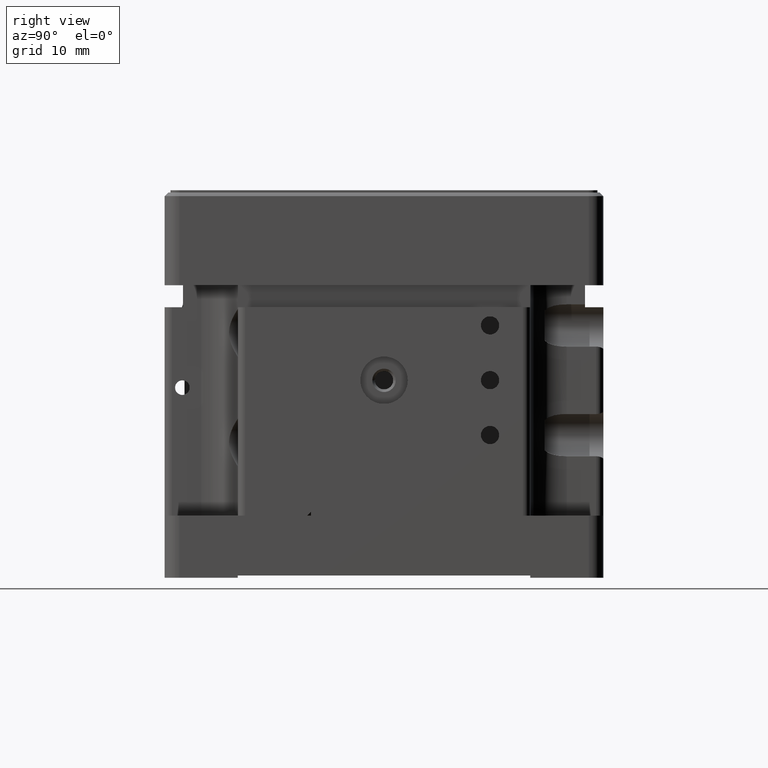
[diagram: clean part render]
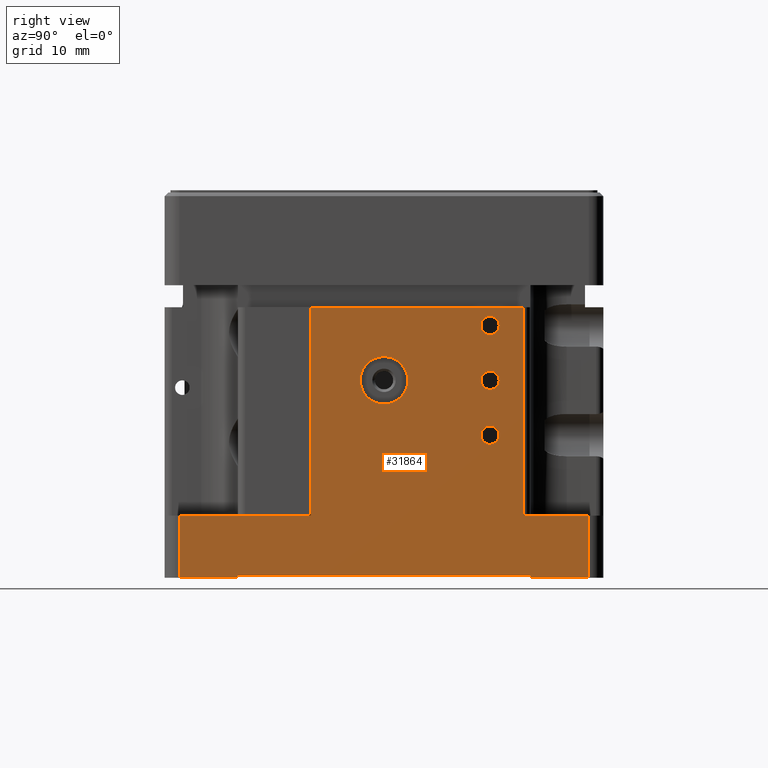
[diagram: same view with one face highlighted and labeled with its STEP entity id]
A machine part, right view. The second image highlights one B-rep face of the part: STEP entity #31864.
In plain terms, the highlighted planar face has unit normal (1, 0, 0).
Its self-contained STEP definition (entity closure, byte-faithful):
#19 = ORIENTED_EDGE ( 'NONE', *, *, #12343, .F. ) ;
#196 = FACE_BOUND ( 'NONE', #23311, .T. ) ;
#382 = DIRECTION ( 'NONE',  ( 0.000000000000000000, 1.000000000000000000, 0.000000000000000000 ) ) ;
#1171 = CARTESIAN_POINT ( 'NONE',  ( 30.00000000000000000, 13.25000000000000000, 26.00000000000000000 ) ) ;
#1453 = VERTEX_POINT ( 'NONE', #10500 ) ;
#1539 = DIRECTION ( 'NONE',  ( 0.000000000000000000, 0.000000000000000000, 1.000000000000000000 ) ) ;
#2088 = DIRECTION ( 'NONE',  ( 0.000000000000000000, 0.000000000000000000, 1.000000000000000000 ) ) ;
#2244 = DIRECTION ( 'NONE',  ( 0.000000000000000000, 1.000000000000000000, 0.000000000000000000 ) ) ;
#2496 = CARTESIAN_POINT ( 'NONE',  ( 30.00000000000000000, 3.250000000000000000, 18.50000000000000000 ) ) ;
#2502 = CARTESIAN_POINT ( 'NONE',  ( 30.00000000000000000, 13.25000000000000000, 18.50000000000000000 ) ) ;
#2933 = CARTESIAN_POINT ( 'NONE',  ( 30.00000000000000000, -20.00000000000000000, -8.200000000000001066 ) ) ;
#3185 = VECTOR ( 'NONE', #33262, 1000.000000000000000 ) ;
#3278 = EDGE_CURVE ( 'NONE', #31122, #7714, #16476, .T. ) ;
#3450 = LINE ( 'NONE', #16504, #17780 ) ;
#3701 = DIRECTION ( 'NONE',  ( 1.000000000000000000, 0.000000000000000000, 0.000000000000000000 ) ) ;
#3702 = VERTEX_POINT ( 'NONE', #8988 ) ;
#4165 = CARTESIAN_POINT ( 'NONE',  ( 30.00000000000000000, 20.00000000000000000, -8.500000000000000000 ) ) ;
#4915 = VERTEX_POINT ( 'NONE', #14478 ) ;
#5114 = ORIENTED_EDGE ( 'NONE', *, *, #11395, .F. ) ;
#5138 = EDGE_CURVE ( 'NONE', #31122, #7283, #31779, .T. ) ;
#5150 = VERTEX_POINT ( 'NONE', #2502 ) ;
#5182 = EDGE_CURVE ( 'NONE', #1453, #13533, #24009, .T. ) ;
#5289 = EDGE_LOOP ( 'NONE', ( #28198, #19925 ) ) ;
#5333 = CARTESIAN_POINT ( 'NONE',  ( 30.00000000000000000, -20.00000000000000000, -8.200000000000001066 ) ) ;
#5681 = CIRCLE ( 'NONE', #10178, 1.249999999999999334 ) ;
#5740 = VERTEX_POINT ( 'NONE', #1171 ) ;
#6149 = CARTESIAN_POINT ( 'NONE',  ( 30.00000000000000000, 28.00000000000000000, 0.000000000000000000 ) ) ;
#6386 = DIRECTION ( 'NONE',  ( 0.000000000000000000, 1.000000000000000000, 0.000000000000000000 ) ) ;
#6529 = DIRECTION ( 'NONE',  ( 1.000000000000000000, 0.000000000000000000, 0.000000000000000000 ) ) ;
#6609 = VECTOR ( 'NONE', #29565, 1000.000000000000000 ) ;
#6643 = CARTESIAN_POINT ( 'NONE',  ( 30.00000000000000000, 19.00000000000000000, 0.000000000000000000 ) ) ;
#6654 = DIRECTION ( 'NONE',  ( 1.000000000000000000, 0.000000000000000000, 0.000000000000000000 ) ) ;
#6694 = DIRECTION ( 'NONE',  ( 0.000000000000000000, -1.000000000000000000, 0.000000000000000000 ) ) ;
#6974 = ORIENTED_EDGE ( 'NONE', *, *, #20672, .T. ) ;
#7026 = EDGE_CURVE ( 'NONE', #24169, #5740, #32182, .T. ) ;
#7042 = EDGE_CURVE ( 'NONE', #4915, #5150, #5681, .T. ) ;
#7187 = ORIENTED_EDGE ( 'NONE', *, *, #18861, .F. ) ;
#7283 = VERTEX_POINT ( 'NONE', #9562 ) ;
#7402 = CARTESIAN_POINT ( 'NONE',  ( 30.00000000000000000, 15.75000000000000000, 11.00000000000000000 ) ) ;
#7500 = CARTESIAN_POINT ( 'NONE',  ( 30.00000000000000000, 28.00000000000000000, 0.000000000000000000 ) ) ;
#7507 = EDGE_CURVE ( 'NONE', #11823, #20829, #10612, .T. ) ;
#7585 = CARTESIAN_POINT ( 'NONE',  ( 30.00000000000000000, 0.000000000000000000, 0.000000000000000000 ) ) ;
#7692 = CARTESIAN_POINT ( 'NONE',  ( 30.00000000000000000, -10.00000000000000000, 0.000000000000000000 ) ) ;
#7714 = VERTEX_POINT ( 'NONE', #25410 ) ;
#8072 = ORIENTED_EDGE ( 'NONE', *, *, #5138, .T. ) ;
#8479 = ORIENTED_EDGE ( 'NONE', *, *, #7507, .T. ) ;
#8550 = DIRECTION ( 'NONE',  ( 0.000000000000000000, 1.000000000000000000, 0.000000000000000000 ) ) ;
#8644 = CARTESIAN_POINT ( 'NONE',  ( 30.00000000000000000, -28.00000000000000000, -8.500000000000000000 ) ) ;
#8988 = CARTESIAN_POINT ( 'NONE',  ( 30.00000000000000000, -20.00000000000000000, -8.500000000000000000 ) ) ;
#9118 = VECTOR ( 'NONE', #32312, 1000.000000000000000 ) ;
#9294 = DIRECTION ( 'NONE',  ( 0.000000000000000000, 1.000000000000000000, 0.000000000000000000 ) ) ;
#9554 = AXIS2_PLACEMENT_3D ( 'NONE', #14475, #20290, #6694 ) ;
#9562 = CARTESIAN_POINT ( 'NONE',  ( 30.00000000000000000, -10.00000000000000000, 0.000000000000000000 ) ) ;
#9985 = EDGE_CURVE ( 'NONE', #3702, #27763, #25707, .T. ) ;
#10178 = AXIS2_PLACEMENT_3D ( 'NONE', #11950, #22707, #9294 ) ;
#10406 = PLANE ( 'NONE',  #15788 ) ;
#10500 = CARTESIAN_POINT ( 'NONE',  ( 30.00000000000000000, -28.00000000000000000, 0.000000000000000000 ) ) ;
#10612 = LINE ( 'NONE', #21370, #12477 ) ;
#10682 = CARTESIAN_POINT ( 'NONE',  ( 30.00000000000000000, 14.50000000000000000, 11.00000000000000000 ) ) ;
#10879 = DIRECTION ( 'NONE',  ( 1.000000000000000000, 0.000000000000000000, 0.000000000000000000 ) ) ;
#10913 = ORIENTED_EDGE ( 'NONE', *, *, #31971, .F. ) ;
#11062 = ORIENTED_EDGE ( 'NONE', *, *, #27206, .F. ) ;
#11262 = ORIENTED_EDGE ( 'NONE', *, *, #3278, .F. ) ;
#11303 = VECTOR ( 'NONE', #21920, 1000.000000000000000 ) ;
#11329 = CIRCLE ( 'NONE', #9554, 1.249999999999999334 ) ;
#11395 = EDGE_CURVE ( 'NONE', #5740, #24169, #22153, .T. ) ;
#11467 = CARTESIAN_POINT ( 'NONE',  ( 30.00000000000000000, 0.000000000000000000, 18.50000000000000000 ) ) ;
#11823 = VERTEX_POINT ( 'NONE', #7500 ) ;
#11950 = CARTESIAN_POINT ( 'NONE',  ( 30.00000000000000000, 14.50000000000000000, 18.50000000000000000 ) ) ;
#11993 = AXIS2_PLACEMENT_3D ( 'NONE', #19173, #10879, #26934 ) ;
#12170 = EDGE_LOOP ( 'NONE', ( #33125, #19 ) ) ;
#12343 = EDGE_CURVE ( 'NONE', #27368, #19048, #27844, .T. ) ;
#12477 = VECTOR ( 'NONE', #32148, 1000.000000000000000 ) ;
#12600 = VECTOR ( 'NONE', #33131, 1000.000000000000000 ) ;
#12803 = VERTEX_POINT ( 'NONE', #17237 ) ;
#13139 = CARTESIAN_POINT ( 'NONE',  ( 30.00000000000000000, 13.25000000000000000, 11.00000000000000000 ) ) ;
#13224 = DIRECTION ( 'NONE',  ( 1.000000000000000000, 0.000000000000000000, 0.000000000000000000 ) ) ;
#13533 = VERTEX_POINT ( 'NONE', #21271 ) ;
#14069 = EDGE_CURVE ( 'NONE', #5150, #4915, #11329, .T. ) ;
#14449 = ORIENTED_EDGE ( 'NONE', *, *, #9985, .T. ) ;
#14475 = CARTESIAN_POINT ( 'NONE',  ( 30.00000000000000000, 14.50000000000000000, 18.50000000000000000 ) ) ;
#14478 = CARTESIAN_POINT ( 'NONE',  ( 30.00000000000000000, 15.75000000000000000, 18.50000000000000000 ) ) ;
#15326 = ORIENTED_EDGE ( 'NONE', *, *, #7026, .F. ) ;
#15372 = EDGE_LOOP ( 'NONE', ( #23826, #7187 ) ) ;
#15405 = CARTESIAN_POINT ( 'NONE',  ( 30.00000000000000000, 28.00000000000000000, -8.500000000000000000 ) ) ;
#15643 = DIRECTION ( 'NONE',  ( 1.000000000000000000, 0.000000000000000000, 0.000000000000000000 ) ) ;
#15788 = AXIS2_PLACEMENT_3D ( 'NONE', #7585, #13224, #16407 ) ;
#16047 = FACE_BOUND ( 'NONE', #15372, .T. ) ;
#16407 = DIRECTION ( 'NONE',  ( 0.000000000000000000, 1.000000000000000000, 0.000000000000000000 ) ) ;
#16463 = EDGE_CURVE ( 'NONE', #13533, #3702, #24181, .T. ) ;
#16476 = LINE ( 'NONE', #21749, #11303 ) ;
#16504 = CARTESIAN_POINT ( 'NONE',  ( 30.00000000000000000, 20.00000000000000000, -8.500000000000000000 ) ) ;
#16562 = CARTESIAN_POINT ( 'NONE',  ( 30.00000000000000000, 15.75000000000000000, 26.00000000000000000 ) ) ;
#16809 = ORIENTED_EDGE ( 'NONE', *, *, #5182, .T. ) ;
#16900 = CARTESIAN_POINT ( 'NONE',  ( 30.00000000000000000, 19.00000000000000000, 0.000000000000000000 ) ) ;
#17237 = CARTESIAN_POINT ( 'NONE',  ( 30.00000000000000000, 20.00000000000000000, -8.200000000000001066 ) ) ;
#17395 = LINE ( 'NONE', #4165, #24518 ) ;
#17780 = VECTOR ( 'NONE', #8550, 1000.000000000000000 ) ;
#18063 = VECTOR ( 'NONE', #30152, 1000.000000000000000 ) ;
#18292 = EDGE_CURVE ( 'NONE', #19048, #27368, #24837, .T. ) ;
#18511 = AXIS2_PLACEMENT_3D ( 'NONE', #30215, #33396, #6386 ) ;
#18522 = VERTEX_POINT ( 'NONE', #26139 ) ;
#18695 = CARTESIAN_POINT ( 'NONE',  ( 30.00000000000000000, -3.250000000000000000, 18.50000000000000000 ) ) ;
#18861 = EDGE_CURVE ( 'NONE', #28383, #33983, #32208, .T. ) ;
#18892 = CARTESIAN_POINT ( 'NONE',  ( 30.00000000000000000, -28.00000000000000000, 0.000000000000000000 ) ) ;
#19048 = VERTEX_POINT ( 'NONE', #7402 ) ;
#19173 = CARTESIAN_POINT ( 'NONE',  ( 30.00000000000000000, 14.50000000000000000, 26.00000000000000000 ) ) ;
#19368 = LINE ( 'NONE', #16900, #12600 ) ;
#19380 = AXIS2_PLACEMENT_3D ( 'NONE', #25371, #3701, #25206 ) ;
#19426 = VECTOR ( 'NONE', #2088, 1000.000000000000000 ) ;
#19925 = ORIENTED_EDGE ( 'NONE', *, *, #14069, .F. ) ;
#20068 = LINE ( 'NONE', #7692, #6609 ) ;
#20290 = DIRECTION ( 'NONE',  ( 1.000000000000000000, 0.000000000000000000, 0.000000000000000000 ) ) ;
#20672 = EDGE_CURVE ( 'NONE', #20829, #7714, #19368, .T. ) ;
#20829 = VERTEX_POINT ( 'NONE', #6643 ) ;
#20956 = CARTESIAN_POINT ( 'NONE',  ( 30.00000000000000000, -20.00000000000000000, -8.500000000000000000 ) ) ;
#21071 = EDGE_CURVE ( 'NONE', #27763, #12803, #27086, .T. ) ;
#21271 = CARTESIAN_POINT ( 'NONE',  ( 30.00000000000000000, -28.00000000000000000, -8.500000000000000000 ) ) ;
#21370 = CARTESIAN_POINT ( 'NONE',  ( 30.00000000000000000, 28.00000000000000000, 0.000000000000000000 ) ) ;
#21494 = AXIS2_PLACEMENT_3D ( 'NONE', #11467, #6529, #28061 ) ;
#21749 = CARTESIAN_POINT ( 'NONE',  ( 30.00000000000000000, -10.00000000000000000, 28.50000000000000000 ) ) ;
#21875 = ORIENTED_EDGE ( 'NONE', *, *, #16463, .T. ) ;
#21920 = DIRECTION ( 'NONE',  ( 0.000000000000000000, 1.000000000000000000, 0.000000000000000000 ) ) ;
#22003 = EDGE_CURVE ( 'NONE', #7283, #1453, #20068, .T. ) ;
#22153 = CIRCLE ( 'NONE', #11993, 1.249999999999999334 ) ;
#22707 = DIRECTION ( 'NONE',  ( 1.000000000000000000, 0.000000000000000000, 0.000000000000000000 ) ) ;
#23311 = EDGE_LOOP ( 'NONE', ( #15326, #5114 ) ) ;
#23638 = FACE_BOUND ( 'NONE', #12170, .T. ) ;
#23826 = ORIENTED_EDGE ( 'NONE', *, *, #30499, .F. ) ;
#24009 = LINE ( 'NONE', #18892, #9118 ) ;
#24169 = VERTEX_POINT ( 'NONE', #16562 ) ;
#24181 = LINE ( 'NONE', #8644, #30212 ) ;
#24518 = VECTOR ( 'NONE', #1539, 1000.000000000000000 ) ;
#24837 = CIRCLE ( 'NONE', #29931, 1.249999999999999334 ) ;
#25206 = DIRECTION ( 'NONE',  ( 0.000000000000000000, -1.000000000000000000, 0.000000000000000000 ) ) ;
#25371 = CARTESIAN_POINT ( 'NONE',  ( 30.00000000000000000, 14.50000000000000000, 11.00000000000000000 ) ) ;
#25410 = CARTESIAN_POINT ( 'NONE',  ( 30.00000000000000000, 19.00000000000000000, 28.50000000000000000 ) ) ;
#25530 = CARTESIAN_POINT ( 'NONE',  ( 30.00000000000000000, 14.50000000000000000, 26.00000000000000000 ) ) ;
#25700 = DIRECTION ( 'NONE',  ( 0.000000000000000000, 1.000000000000000000, 0.000000000000000000 ) ) ;
#25707 = LINE ( 'NONE', #20956, #19426 ) ;
#26139 = CARTESIAN_POINT ( 'NONE',  ( 30.00000000000000000, 20.00000000000000000, -8.500000000000000000 ) ) ;
#26493 = VERTEX_POINT ( 'NONE', #15405 ) ;
#26569 = VECTOR ( 'NONE', #29312, 1000.000000000000000 ) ;
#26629 = FACE_BOUND ( 'NONE', #5289, .T. ) ;
#26934 = DIRECTION ( 'NONE',  ( 0.000000000000000000, -1.000000000000000000, 0.000000000000000000 ) ) ;
#27086 = LINE ( 'NONE', #2933, #3185 ) ;
#27206 = EDGE_CURVE ( 'NONE', #18522, #12803, #17395, .T. ) ;
#27368 = VERTEX_POINT ( 'NONE', #13139 ) ;
#27730 = ORIENTED_EDGE ( 'NONE', *, *, #33750, .T. ) ;
#27763 = VERTEX_POINT ( 'NONE', #5333 ) ;
#27844 = CIRCLE ( 'NONE', #19380, 1.249999999999999334 ) ;
#28061 = DIRECTION ( 'NONE',  ( 0.000000000000000000, -1.000000000000000000, 0.000000000000000000 ) ) ;
#28198 = ORIENTED_EDGE ( 'NONE', *, *, #7042, .F. ) ;
#28383 = VERTEX_POINT ( 'NONE', #18695 ) ;
#29146 = CARTESIAN_POINT ( 'NONE',  ( 30.00000000000000000, -10.00000000000000000, 28.50000000000000000 ) ) ;
#29312 = DIRECTION ( 'NONE',  ( 0.000000000000000000, 0.000000000000000000, -1.000000000000000000 ) ) ;
#29451 = ORIENTED_EDGE ( 'NONE', *, *, #22003, .T. ) ;
#29565 = DIRECTION ( 'NONE',  ( 0.000000000000000000, -1.000000000000000000, 0.000000000000000000 ) ) ;
#29802 = FACE_OUTER_BOUND ( 'NONE', #33379, .T. ) ;
#29931 = AXIS2_PLACEMENT_3D ( 'NONE', #10682, #15643, #2244 ) ;
#30152 = DIRECTION ( 'NONE',  ( 0.000000000000000000, 0.000000000000000000, -1.000000000000000000 ) ) ;
#30212 = VECTOR ( 'NONE', #382, 1000.000000000000000 ) ;
#30215 = CARTESIAN_POINT ( 'NONE',  ( 30.00000000000000000, 0.000000000000000000, 18.50000000000000000 ) ) ;
#30499 = EDGE_CURVE ( 'NONE', #33983, #28383, #32035, .T. ) ;
#30504 = LINE ( 'NONE', #6149, #18063 ) ;
#30851 = ORIENTED_EDGE ( 'NONE', *, *, #21071, .T. ) ;
#31037 = AXIS2_PLACEMENT_3D ( 'NONE', #25530, #6654, #25700 ) ;
#31122 = VERTEX_POINT ( 'NONE', #34209 ) ;
#31779 = LINE ( 'NONE', #29146, #26569 ) ;
#31864 = ADVANCED_FACE ( 'NONE', ( #26629, #16047, #23638, #196, #29802 ), #10406, .T. ) ;
#31971 = EDGE_CURVE ( 'NONE', #11823, #26493, #30504, .T. ) ;
#32035 = CIRCLE ( 'NONE', #18511, 3.250000000000000000 ) ;
#32148 = DIRECTION ( 'NONE',  ( 0.000000000000000000, -1.000000000000000000, 0.000000000000000000 ) ) ;
#32182 = CIRCLE ( 'NONE', #31037, 1.249999999999999334 ) ;
#32208 = CIRCLE ( 'NONE', #21494, 3.250000000000000000 ) ;
#32312 = DIRECTION ( 'NONE',  ( 0.000000000000000000, 0.000000000000000000, -1.000000000000000000 ) ) ;
#33125 = ORIENTED_EDGE ( 'NONE', *, *, #18292, .F. ) ;
#33131 = DIRECTION ( 'NONE',  ( 0.000000000000000000, 0.000000000000000000, 1.000000000000000000 ) ) ;
#33262 = DIRECTION ( 'NONE',  ( 0.000000000000000000, 1.000000000000000000, 0.000000000000000000 ) ) ;
#33379 = EDGE_LOOP ( 'NONE', ( #8072, #29451, #16809, #21875, #14449, #30851, #11062, #27730, #10913, #8479, #6974, #11262 ) ) ;
#33396 = DIRECTION ( 'NONE',  ( 1.000000000000000000, 0.000000000000000000, 0.000000000000000000 ) ) ;
#33750 = EDGE_CURVE ( 'NONE', #18522, #26493, #3450, .T. ) ;
#33983 = VERTEX_POINT ( 'NONE', #2496 ) ;
#34209 = CARTESIAN_POINT ( 'NONE',  ( 30.00000000000000000, -10.00000000000000000, 28.50000000000000000 ) ) ;